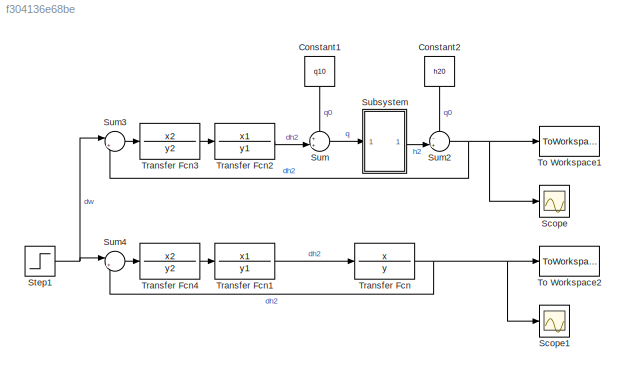
MODEL slx_f304136e68be
KIND model
CONFIG AbsTol = auto
CONFIG EnableMultiTasking = off
CONFIG FixedStep = auto
CONFIG MaxStep = auto
CONFIG MinStep = auto
CONFIG RelTol = 1e-3
CONFIG SampleTimeConstraint = Unconstrained
CONFIG SolverName = VariableStepAuto
CONFIG StartTime = 0.0
CONFIG StopTime = 150.0
BLOCK [Constant] Constant1
  NameLocation = left
  Value = q10
BLOCK [Constant] Constant2
  NameLocation = left
  Value = h20
BLOCK [Scope] Scope
  Floating = off
  NumInputPorts = 1
  Ports = [1]
  ScopeSpecificationString = Simulink.scopes.TimeScopeBlockCfg('CurrentConfiguration', extmgr.ConfigurationSet(extmgr.Configuration('Core','General UI',true),extmgr.Configuration('Core','Source UI',true),extmgr.Configuration('Sources','WiredSimulink',true),extmgr.Configuration('Visuals','Time Domain',true,'SerializedDisplays',{struct('MinYLimReal','-0.15881','MaxYLimReal','1.42928','YLabelReal','','MinYLimMag','0.00000','MaxY...<+1378ch>
BLOCK [Scope] Scope1
  Floating = off
  NumInputPorts = 1
  Ports = [1]
  ScopeSpecificationString = Simulink.scopes.TimeScopeBlockCfg('CurrentConfiguration', extmgr.ConfigurationSet(extmgr.Configuration('Core','General UI',true),extmgr.Configuration('Core','Source UI',true),extmgr.Configuration('Sources','WiredSimulink',true,'DataLoggingVariableName','ScopeData1'),extmgr.Configuration('Visuals','Time Domain',true,'SerializedDisplays',{struct('MinYLimReal','-0.16261','MaxYLimReal','1.46353','YLab...<+1417ch>
BLOCK [Step] Step1
  SampleTime = 0
  Time = 0
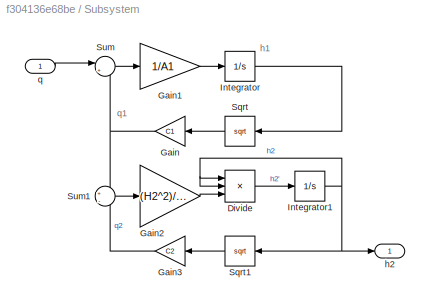
BLOCK [SubSystem] Subsystem
  Ports = [1, 1]
  RequestExecContextInheritance = off
BLOCK [Product] Subsystem/Divide
  Inputs = //*
  Ports = [3, 1]
BLOCK [Gain] Subsystem/Gain
  Gain = C1
BLOCK [Gain] Subsystem/Gain1
  Gain = 1/A1
BLOCK [Gain] Subsystem/Gain2
  Gain = (H2^2)/A2
BLOCK [Gain] Subsystem/Gain3
  Gain = C2
BLOCK [Integrator] Subsystem/Integrator
  InitialCondition = h10
  Ports = [1, 1]
BLOCK [Integrator] Subsystem/Integrator1
  InitialCondition = h20
  Ports = [1, 1]
BLOCK [Sqrt] Subsystem/Sqrt
BLOCK [Sqrt] Subsystem/Sqrt1
BLOCK [Sum] Subsystem/Sum
  Inputs = |+-
  Ports = [2, 1]
BLOCK [Sum] Subsystem/Sum1
  Inputs = +|-
  Ports = [2, 1]
BLOCK [Outport] Subsystem/h2
BLOCK [Inport] Subsystem/q
BLOCK [Sum] Sum
  Inputs = ++|
  Ports = [2, 1]
BLOCK [Sum] Sum2
  Inputs = -+|
  Ports = [2, 1]
BLOCK [Sum] Sum3
  Inputs = |+-
  Ports = [2, 1]
BLOCK [Sum] Sum4
  Inputs = |+-
  Ports = [2, 1]
BLOCK [ToWorkspace] To Workspace1
  FixptAsFi = on
  MaxDataPoints = inf
  Ports = [1]
  SampleTime = -1
  VariableName = simout1
BLOCK [ToWorkspace] To Workspace2
  FixptAsFi = on
  MaxDataPoints = inf
  Ports = [1]
  SampleTime = -1
  VariableName = simout
BLOCK [TransferFcn] Transfer Fcn
  Denominator = y
  Numerator = x
BLOCK [TransferFcn] Transfer Fcn1
  Denominator = y1
  Numerator = x1
BLOCK [TransferFcn] Transfer Fcn2
  Denominator = y1
  Numerator = x1
BLOCK [TransferFcn] Transfer Fcn3
  Denominator = y2
  Numerator = x2
BLOCK [TransferFcn] Transfer Fcn4
  Denominator = y2
  Numerator = x2
ANNOTATION Subsystem: h1
ANNOTATION Subsystem: q1
LINE Constant1:1 -> Sum:1
LINE Constant2:1 -> Sum2:1
NET Step1:1 -> Sum3:1, Sum4:1
LINE Subsystem/Divide:1 -> Subsystem/Integrator1:1
LINE Subsystem/Gain1:1 -> Subsystem/Integrator:1
LINE Subsystem/Gain2:1 -> Subsystem/Divide:3
LINE Subsystem/Gain3:1 -> Subsystem/Sum1:2
NET Subsystem/Gain:1 -> Subsystem/Sum1:1, Subsystem/Sum:2
NET Subsystem/Integrator1:1 -> Subsystem/Divide:1, Subsystem/Divide:2, Subsystem/Sqrt1:1, Subsystem/h2:1
LINE Subsystem/Integrator:1 -> Subsystem/Sqrt:1
LINE Subsystem/Sqrt1:1 -> Subsystem/Gain3:1
LINE Subsystem/Sqrt:1 -> Subsystem/Gain:1
LINE Subsystem/Sum1:1 -> Subsystem/Gain2:1
LINE Subsystem/Sum:1 -> Subsystem/Gain1:1
LINE Subsystem/q:1 -> Subsystem/Sum:1
LINE Subsystem:1 -> Sum2:2
NET Sum2:1 -> Scope:1, Sum3:2, To Workspace1:1
LINE Sum3:1 -> Transfer Fcn3:1
LINE Sum4:1 -> Transfer Fcn4:1
LINE Sum:1 -> Subsystem:1
LINE Transfer Fcn1:1 -> Transfer Fcn:1
LINE Transfer Fcn2:1 -> Sum:2
LINE Transfer Fcn3:1 -> Transfer Fcn2:1
LINE Transfer Fcn4:1 -> Transfer Fcn1:1
NET Transfer Fcn:1 -> Scope1:1, Sum4:2, To Workspace2:1
note: NET lines group one-source signal fan-out (src -> all destinations, sorted); 1:1 wires keep LINE
